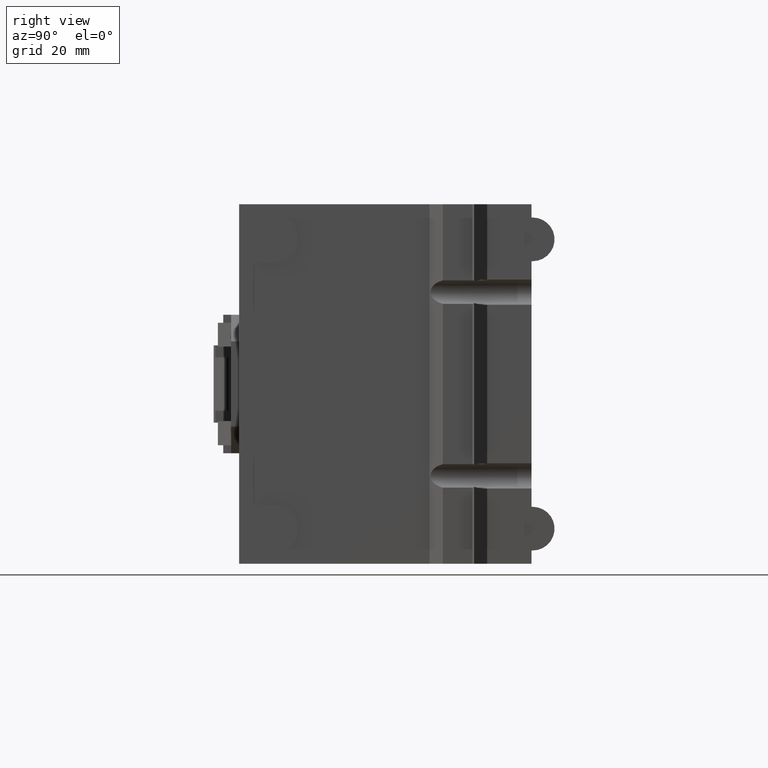
[diagram: clean part render]
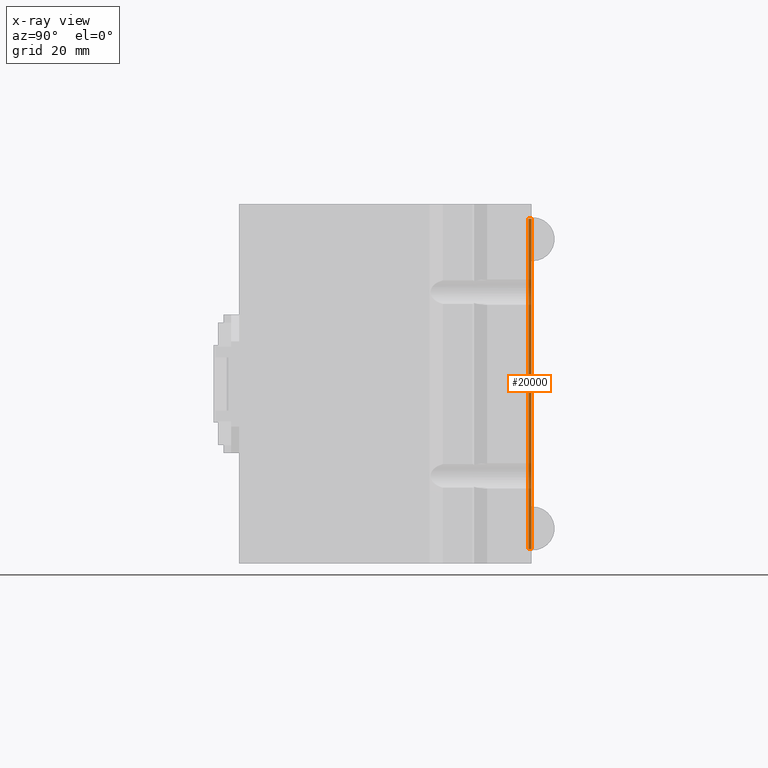
[diagram: x-ray — body ghosted, one internal face saturated and labeled with its STEP entity id]
A machine part, right view, then the same camera in x-ray: the body is ghosted and one INTERNAL B-rep face — a face not visible from any outside direction — is saturated and labeled: STEP entity #20000.
In plain terms, the highlighted planar face has unit normal (1, 0, 0).
Its self-contained STEP definition (entity closure, byte-faithful):
#4920=CARTESIAN_POINT('',(-37.,107.5,25.25));
#4930=VERTEX_POINT('',#4920);
#4960=CARTESIAN_POINT('',(0.,107.5,25.25));
#4970=DIRECTION('',(-1.,0.,0.));
#4980=VECTOR('',#4970,1.);
#4990=LINE('',#4960,#4980);
#5000=CARTESIAN_POINT('',(87.,107.5,25.25));
#5010=VERTEX_POINT('',#5000);
#5020=EDGE_CURVE('',#5010,#4930,#4990,.T.);
#17420=CARTESIAN_POINT('',(-37.,108.75,25.25));
#17430=VERTEX_POINT('',#17420);
#17460=CARTESIAN_POINT('',(-37.,108.75,25.25));
#17470=DIRECTION('',(0.,1.,0.));
#17480=VECTOR('',#17470,1.);
#17490=LINE('',#17460,#17480);
#17500=EDGE_CURVE('',#4930,#17430,#17490,.T.);
#19680=CARTESIAN_POINT('',(87.,108.75,25.25));
#19690=VERTEX_POINT('',#19680);
#19720=CARTESIAN_POINT('',(0.,108.75,25.25));
#19730=DIRECTION('',(1.,0.,0.));
#19740=VECTOR('',#19730,1.);
#19750=LINE('',#19720,#19740);
#19760=EDGE_CURVE('',#17430,#19690,#19750,.T.);
#19840=CARTESIAN_POINT('',(42.5,108.75,25.25));
#19850=DIRECTION('',(0.,0.,-1.));
#19860=DIRECTION('',(1.,0.,0.));
#19870=AXIS2_PLACEMENT_3D('',#19840,#19850,#19860);
#19880=PLANE('',#19870);
#19890=CARTESIAN_POINT('',(87.,108.75,25.25));
#19900=DIRECTION('',(0.,1.,0.));
#19910=VECTOR('',#19900,1.);
#19920=LINE('',#19890,#19910);
#19930=EDGE_CURVE('',#5010,#19690,#19920,.T.);
#19940=ORIENTED_EDGE('',*,*,#19930,.T.);
#19950=ORIENTED_EDGE('',*,*,#5020,.F.);
#19960=ORIENTED_EDGE('',*,*,#17500,.F.);
#19970=ORIENTED_EDGE('',*,*,#19760,.F.);
#19980=EDGE_LOOP('',(#19970,#19960,#19950,#19940));
#19990=FACE_OUTER_BOUND('',#19980,.T.);
#20000=ADVANCED_FACE('',(#19990),#19880,.F.);